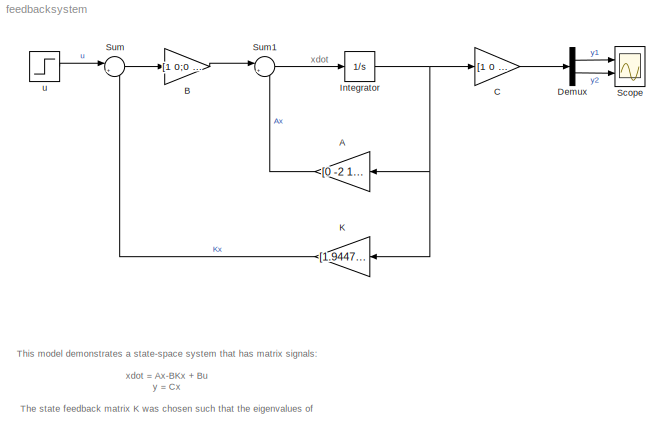
MODEL feedbacksystem
KIND model
BLOCK [Gain] A
  Gain = [0 -2 1 1;1 3 0 1;1 0 -1 1;1 1 -1 -1]
  Multiplication = Matrix(K*u)
BLOCK [Gain] B
  Gain = [1 0;0 1;0 0;0 0]
  Multiplication = Matrix(K*u)
BLOCK [Gain] C
  Gain = [1  0  0  0;0  1  0  0]
  Multiplication = Matrix(K*u)
BLOCK [Demux] Demux
  Outputs = 2
  Ports = [1, 2]
BLOCK [Integrator] Integrator
  Ports = [1, 1]
BLOCK [Gain] K
  Gain = [1.9447 -2.6462 1.6214  0.7910;0.5320  6.0553  -0.9101  0.9485]
  Multiplication = Matrix(K*u)
BLOCK [Scope] Scope
  DataFormat = StructureWithTime
  NumInputPorts = 2
  Ports = [2]
  TimeRange = 10
  YMax = 0.8~0.8
  YMin = 0~0
BLOCK [Sum] Sum
  IconShape = round
  Inputs = |+-
  Ports = [2, 1]
BLOCK [Sum] Sum1
  IconShape = round
  Inputs = |++
  Ports = [2, 1]
BLOCK [Step] u
  SampleTime = 0
  Time = [0 0]'
  VectorParams1D = off
ANNOTATION (root): xdot
ANNOTATION (root): This model demonstrates a state-space system that has matrix signals:\n\nxdot = Ax-BKx + Bu \ny = Cx\n\nThe state feedback matrix K was chosen such that the eigenvalues of\nA-BK equal -1+i, -1-i, -2, -3. This ensures that the system is stable.\n
LINE A:1 -> Sum1:2
LINE B:1 -> Sum1:1
LINE C:1 -> Demux:1
LINE Demux:1 -> Scope:1
LINE Demux:2 -> Scope:2
NET Integrator:1 -> A:1, C:1, K:1
LINE K:1 -> Sum:2
LINE Sum1:1 -> Integrator:1
LINE Sum:1 -> B:1
LINE u:1 -> Sum:1
note: NET lines group one-source signal fan-out (src -> all destinations, sorted); 1:1 wires keep LINE
